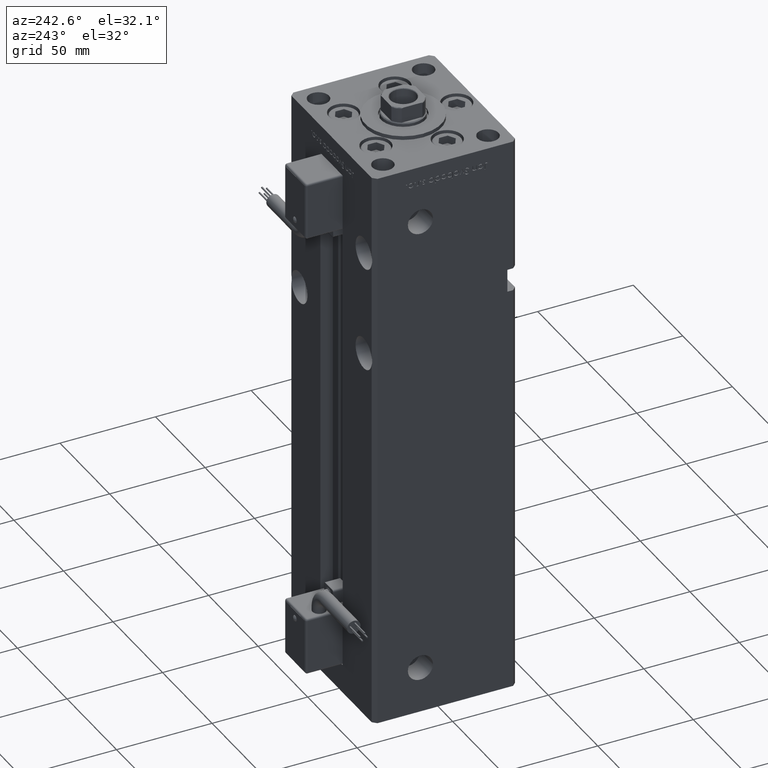
[diagram: clean part render]
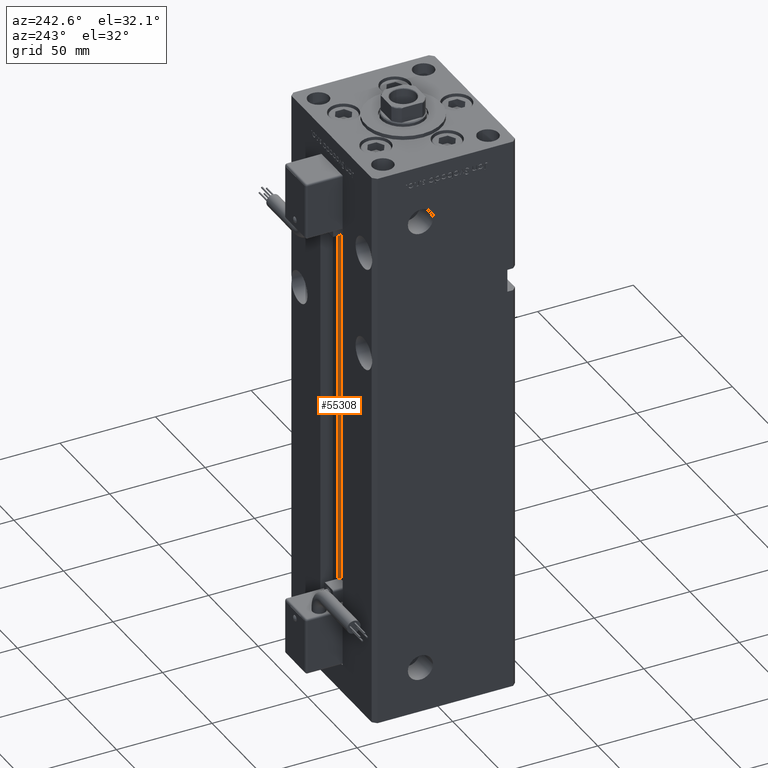
[diagram: same view with one face highlighted and labeled with its STEP entity id]
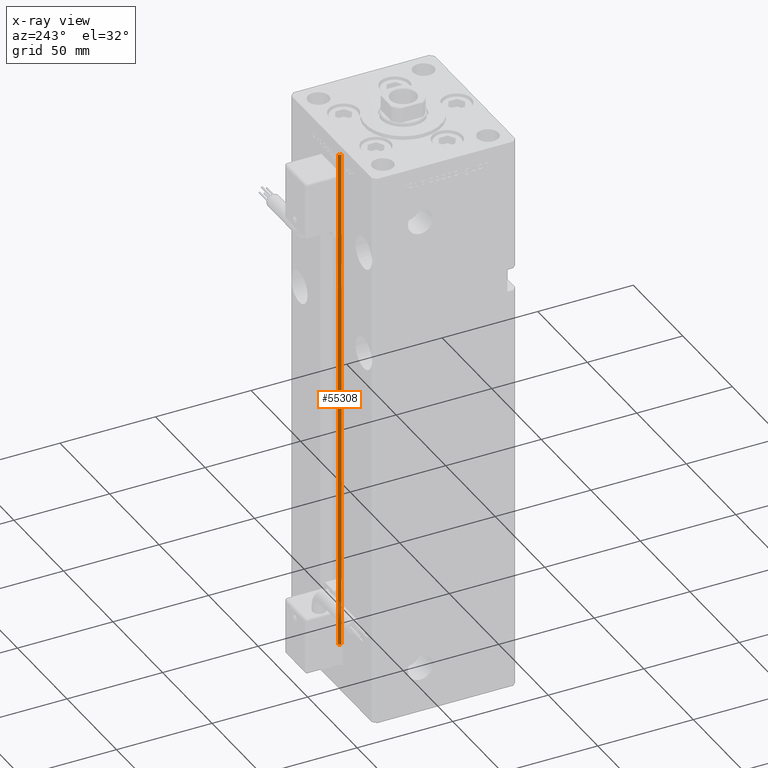
[diagram: x-ray of the same camera — body ghosted, the highlighted face saturated]
A machine part, auxiliary view. The second image highlights one B-rep face of the part: STEP entity #55308.
The next image is the same camera in x-ray: the body ghosted, the highlighted face saturated — about 4% of this face is hidden behind the body in this view.
In plain terms, the highlighted cylindrical surface (edge-blend (fillet) strip) has radius 0.9333 mm, axis along (0, 0, 1).
Its self-contained STEP definition (entity closure, byte-faithful):
#3403 = DIRECTION ( 'NONE',  ( -0.000000000000000000, -0.000000000000000000, -1.000000000000000000 ) ) ;
#5380 = VERTEX_POINT ( 'NONE', #30506 ) ;
#8940 = VERTEX_POINT ( 'NONE', #38839 ) ;
#9901 = CIRCLE ( 'NONE', #20759, 0.9333333333340008142 ) ;
#16865 = CARTESIAN_POINT ( 'NONE',  ( 6.183333333333997928, 30.06666666666599852, 0.000000000000000000 ) ) ;
#17138 = FACE_OUTER_BOUND ( 'NONE', #31617, .T. ) ;
#17819 = DIRECTION ( 'NONE',  ( -0.000000000000000000, -0.000000000000000000, 1.000000000000000000 ) ) ;
#18032 = DIRECTION ( 'NONE',  ( 0.000000000000000000, 0.000000000000000000, -1.000000000000000000 ) ) ;
#18438 = AXIS2_PLACEMENT_3D ( 'NONE', #53213, #18032, #48676 ) ;
#20091 = VERTEX_POINT ( 'NONE', #27743 ) ;
#20717 = DIRECTION ( 'NONE',  ( 1.000000000000000000, 0.000000000000000000, 0.000000000000000000 ) ) ;
#20759 = AXIS2_PLACEMENT_3D ( 'NONE', #47393, #3403, #20717 ) ;
#22068 = LINE ( 'NONE', #51316, #26490 ) ;
#24920 = EDGE_CURVE ( 'NONE', #8940, #5380, #9901, .T. ) ;
#26490 = VECTOR ( 'NONE', #17819, 1000.000000000000000 ) ;
#27743 = CARTESIAN_POINT ( 'NONE',  ( 6.183333333333997928, 31.00000000000000000, 268.5000000000000000 ) ) ;
#30383 = ORIENTED_EDGE ( 'NONE', *, *, #51124, .T. ) ;
#30506 = CARTESIAN_POINT ( 'NONE',  ( 6.183333333333997928, 31.00000000000000000, 0.000000000000000000 ) ) ;
#31345 = CARTESIAN_POINT ( 'NONE',  ( 6.183333333333997928, 31.00000000000000000, 0.000000000000000000 ) ) ;
#31357 = CARTESIAN_POINT ( 'NONE',  ( 5.375042956467946276, 29.59999999999899600, 268.5000000000000000 ) ) ;
#31418 = ORIENTED_EDGE ( 'NONE', *, *, #38738, .F. ) ;
#31617 = EDGE_LOOP ( 'NONE', ( #31418, #37984, #30383, #53479 ) ) ;
#32059 = VERTEX_POINT ( 'NONE', #31357 ) ;
#34166 = CYLINDRICAL_SURFACE ( 'NONE', #52920, 0.9333333333340008142 ) ;
#35006 = DIRECTION ( 'NONE',  ( 1.000000000000000000, 0.000000000000000000, 0.000000000000000000 ) ) ;
#36191 = LINE ( 'NONE', #31345, #47377 ) ;
#37984 = ORIENTED_EDGE ( 'NONE', *, *, #24920, .F. ) ;
#38738 = EDGE_CURVE ( 'NONE', #5380, #20091, #36191, .T. ) ;
#38839 = CARTESIAN_POINT ( 'NONE',  ( 5.375042956467947164, 29.59999999999899245, 0.000000000000000000 ) ) ;
#39253 = DIRECTION ( 'NONE',  ( -0.000000000000000000, -0.000000000000000000, 1.000000000000000000 ) ) ;
#40156 = DIRECTION ( 'NONE',  ( -0.000000000000000000, -0.000000000000000000, 1.000000000000000000 ) ) ;
#47377 = VECTOR ( 'NONE', #40156, 1000.000000000000000 ) ;
#47393 = CARTESIAN_POINT ( 'NONE',  ( 6.183333333333997928, 30.06666666666599852, 0.000000000000000000 ) ) ;
#48676 = DIRECTION ( 'NONE',  ( 1.000000000000000000, 0.000000000000000000, 0.000000000000000000 ) ) ;
#51124 = EDGE_CURVE ( 'NONE', #8940, #32059, #22068, .T. ) ;
#51316 = CARTESIAN_POINT ( 'NONE',  ( 5.375042956467947164, 29.59999999999899245, 0.000000000000000000 ) ) ;
#52920 = AXIS2_PLACEMENT_3D ( 'NONE', #16865, #39253, #35006 ) ;
#53213 = CARTESIAN_POINT ( 'NONE',  ( 6.183333333333997928, 30.06666666666599852, 268.5000000000000000 ) ) ;
#53479 = ORIENTED_EDGE ( 'NONE', *, *, #54010, .T. ) ;
#53823 = CIRCLE ( 'NONE', #18438, 0.9333333333340008142 ) ;
#54010 = EDGE_CURVE ( 'NONE', #32059, #20091, #53823, .T. ) ;
#55308 = ADVANCED_FACE ( 'NONE', ( #17138 ), #34166, .T. ) ;